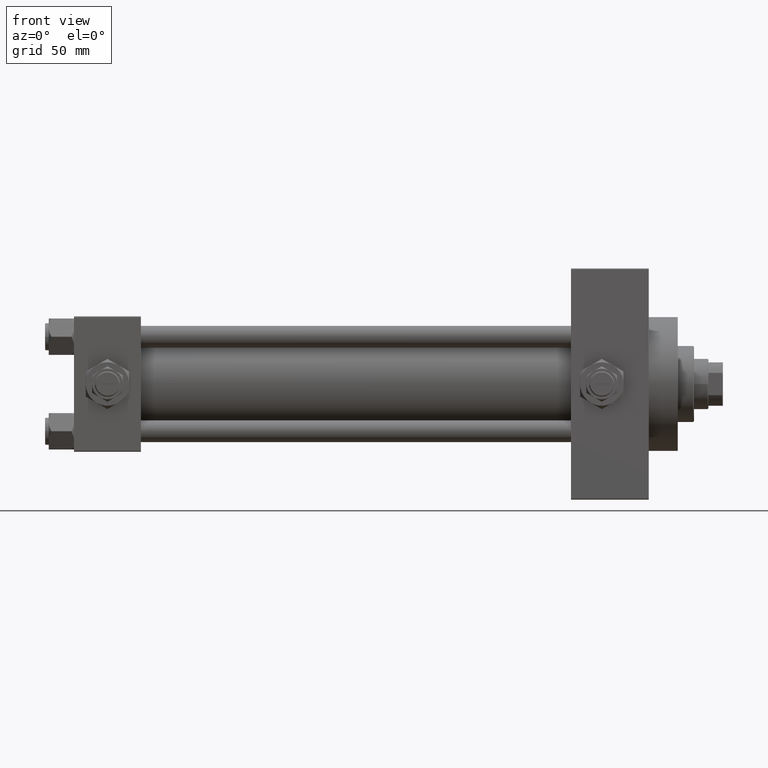
[diagram: clean part render]
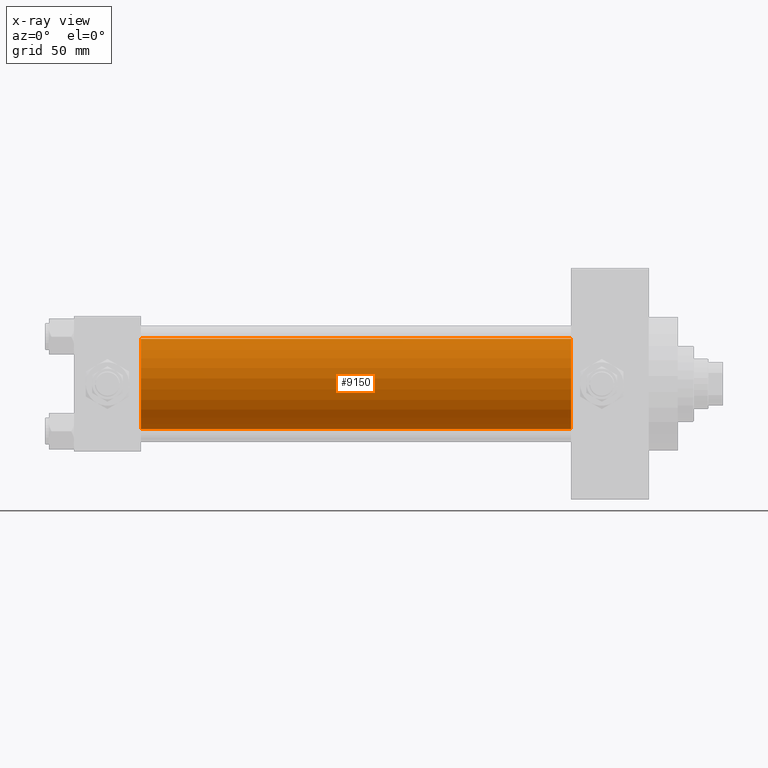
[diagram: x-ray — body ghosted, one internal face saturated and labeled with its STEP entity id]
A machine part, front view, then the same camera in x-ray: the body is ghosted and one INTERNAL B-rep face — a face not visible from any outside direction — is saturated and labeled: STEP entity #9150.
In plain terms, the highlighted cylindrical surface (partial cylindrical patch) has radius 25 mm, axis along (-1, -0, -0).
Its self-contained STEP definition (entity closure, byte-faithful):
#1926 = CARTESIAN_POINT ( 'NONE',  ( 274.9999999999999432, -2.602085213965210642E-15, 25.00000000000000000 ) ) ;
#2212 = AXIS2_PLACEMENT_3D ( 'NONE', #26863, #35063, #34328 ) ;
#2641 = DIRECTION ( 'NONE',  ( 0.000000000000000000, 0.000000000000000000, -1.000000000000000000 ) ) ;
#3000 = VECTOR ( 'NONE', #48340, 1000.000000000000000 ) ;
#4273 = VERTEX_POINT ( 'NONE', #8908 ) ;
#4714 = ORIENTED_EDGE ( 'NONE', *, *, #7763, .T. ) ;
#5092 = CYLINDRICAL_SURFACE ( 'NONE', #35662, 25.00000000000000000 ) ;
#5665 = LINE ( 'NONE', #1926, #32008 ) ;
#7763 = EDGE_CURVE ( 'NONE', #16073, #23443, #21691, .T. ) ;
#8095 = EDGE_CURVE ( 'NONE', #4273, #16073, #37261, .T. ) ;
#8908 = CARTESIAN_POINT ( 'NONE',  ( 274.9999999999999432, -2.602085213965210642E-15, 25.00000000000000000 ) ) ;
#9087 = AXIS2_PLACEMENT_3D ( 'NONE', #47995, #33550, #2641 ) ;
#9150 = ADVANCED_FACE ( 'NONE', ( #35511 ), #5092, .F. ) ;
#10696 = CIRCLE ( 'NONE', #9087, 25.00000000000000000 ) ;
#13682 = ORIENTED_EDGE ( 'NONE', *, *, #8095, .T. ) ;
#16073 = VERTEX_POINT ( 'NONE', #19043 ) ;
#19043 = CARTESIAN_POINT ( 'NONE',  ( 274.9999999999999432, 4.595317839031724996E-16, -25.00000000000000000 ) ) ;
#21691 = LINE ( 'NONE', #22198, #3000 ) ;
#22198 = CARTESIAN_POINT ( 'NONE',  ( 274.9999999999999432, 4.595317839031724996E-16, -25.00000000000000000 ) ) ;
#23443 = VERTEX_POINT ( 'NONE', #44877 ) ;
#24064 = CARTESIAN_POINT ( 'NONE',  ( 274.9999999999999432, -2.602085213965210642E-15, 0.000000000000000000 ) ) ;
#24197 = ORIENTED_EDGE ( 'NONE', *, *, #41193, .F. ) ;
#25279 = CARTESIAN_POINT ( 'NONE',  ( 37.00000000000000000, -2.602085213965210642E-15, 25.00000000000000000 ) ) ;
#26863 = CARTESIAN_POINT ( 'NONE',  ( 274.9999999999999432, -2.602085213965210642E-15, 0.000000000000000000 ) ) ;
#26899 = VERTEX_POINT ( 'NONE', #25279 ) ;
#27022 = EDGE_LOOP ( 'NONE', ( #13682, #4714, #24197, #42815 ) ) ;
#27547 = DIRECTION ( 'NONE',  ( -1.000000000000000000, -0.000000000000000000, -0.000000000000000000 ) ) ;
#32008 = VECTOR ( 'NONE', #32347, 1000.000000000000000 ) ;
#32347 = DIRECTION ( 'NONE',  ( -1.000000000000000000, -0.000000000000000000, -0.000000000000000000 ) ) ;
#33550 = DIRECTION ( 'NONE',  ( 1.000000000000000000, 0.000000000000000000, 0.000000000000000000 ) ) ;
#33974 = EDGE_CURVE ( 'NONE', #4273, #26899, #5665, .T. ) ;
#34328 = DIRECTION ( 'NONE',  ( 0.000000000000000000, 0.000000000000000000, -1.000000000000000000 ) ) ;
#35063 = DIRECTION ( 'NONE',  ( 1.000000000000000000, 0.000000000000000000, 0.000000000000000000 ) ) ;
#35511 = FACE_OUTER_BOUND ( 'NONE', #27022, .T. ) ;
#35662 = AXIS2_PLACEMENT_3D ( 'NONE', #24064, #27547, #42969 ) ;
#37261 = CIRCLE ( 'NONE', #2212, 25.00000000000000000 ) ;
#41193 = EDGE_CURVE ( 'NONE', #26899, #23443, #10696, .T. ) ;
#42815 = ORIENTED_EDGE ( 'NONE', *, *, #33974, .F. ) ;
#42969 = DIRECTION ( 'NONE',  ( 0.000000000000000000, 0.000000000000000000, 1.000000000000000000 ) ) ;
#44877 = CARTESIAN_POINT ( 'NONE',  ( 37.00000000000000000, 4.595317839031724996E-16, -25.00000000000000000 ) ) ;
#47995 = CARTESIAN_POINT ( 'NONE',  ( 37.00000000000000000, -2.602085213965210642E-15, 0.000000000000000000 ) ) ;
#48340 = DIRECTION ( 'NONE',  ( -1.000000000000000000, -0.000000000000000000, -0.000000000000000000 ) ) ;